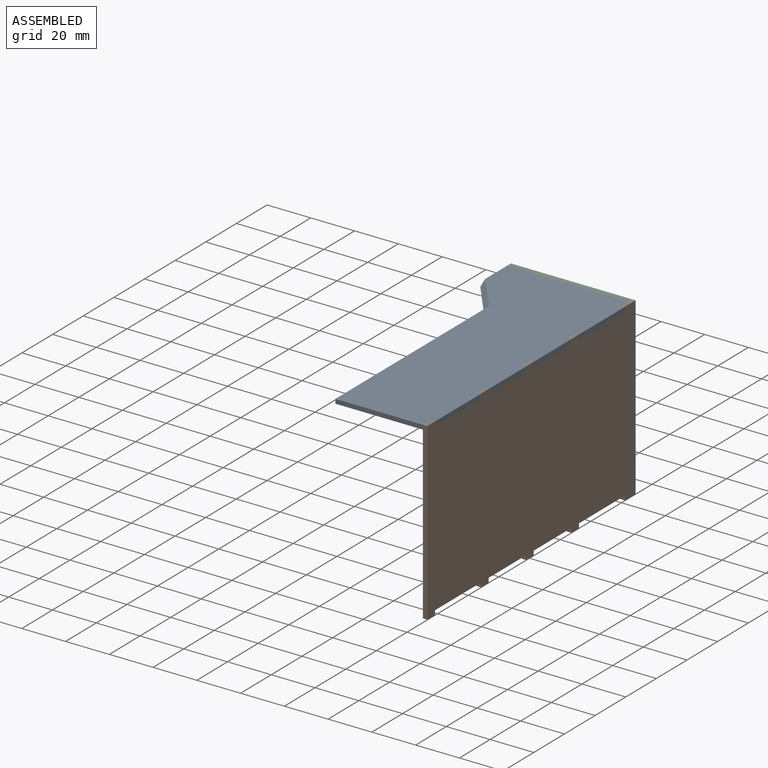
[diagram: assembled view]
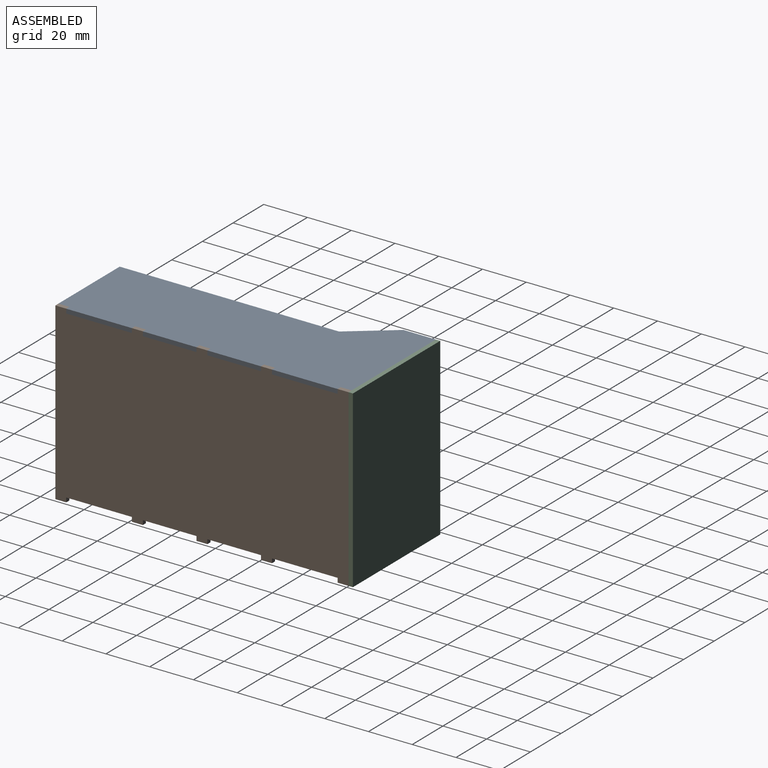
[diagram: assembled view, second angle]
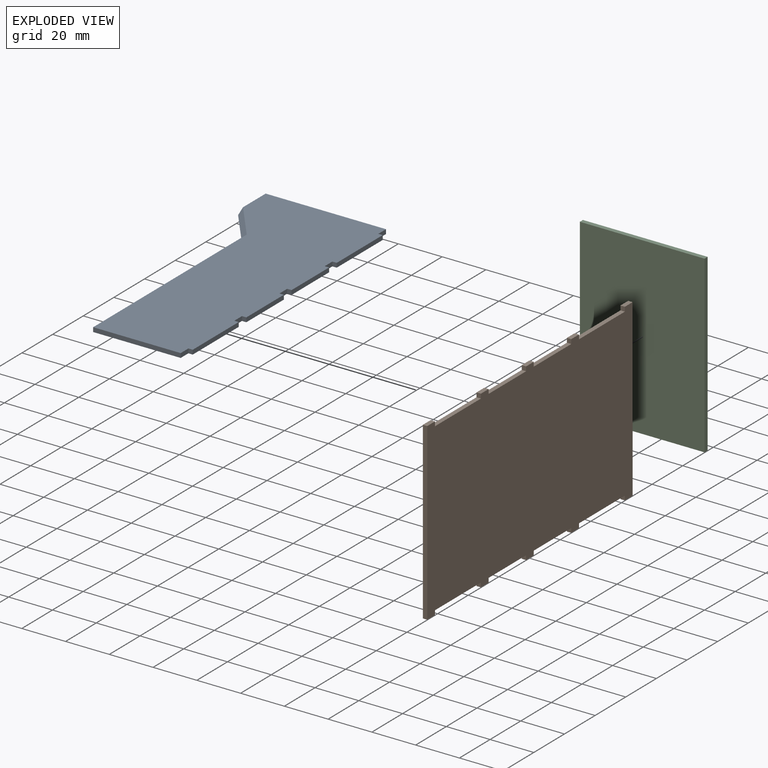
[diagram: exploded view]
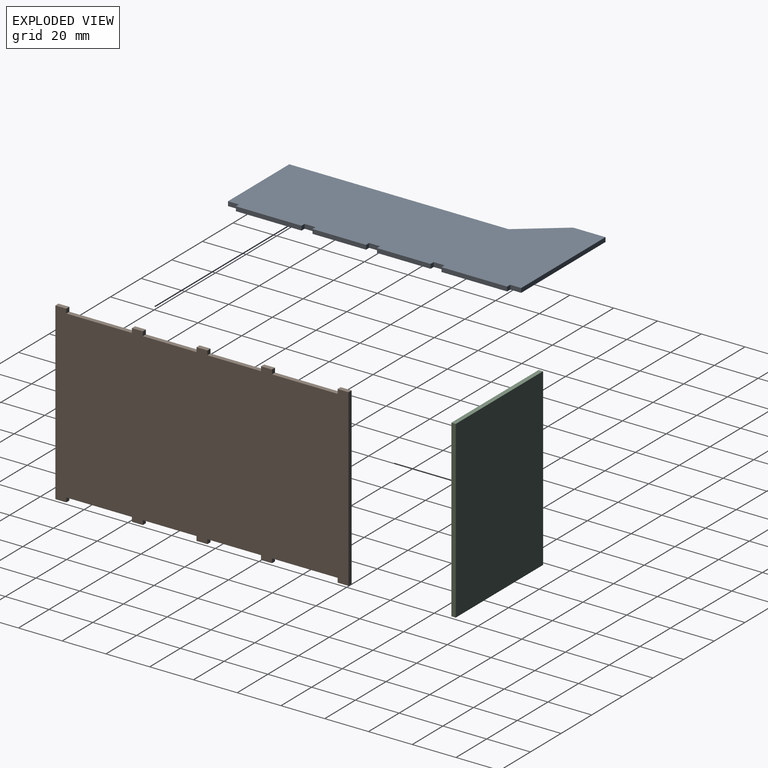
[diagram: exploded view, second angle]
ASSEMBLY  parts=3 mates=2
PART A: 28 faces, bbox 57x134x4 mm
  f0: plane 55x2mm, normal (0,1,0), area 110mm2, adj f5,f6,f9,f16
  f1: plane 30x2mm, normal (1,0,0), area 60mm2, adj f5,f6,f23,f26
  f2: plane 24.5x2mm, normal (1,0,0), area 49mm2, adj f5,f6,f22,f24
  f3: plane 24.5x2mm, normal (1,0,0), area 49mm2, adj f5,f6,f19,f20
  f4: plane 30x2mm, normal (1,0,0), area 60mm2, adj f5,f6,f15,f17
  f5: plane 134x57mm, normal (0,0,1), area 5942.1mm2, adj f0,f1,f2,f3,f4,f7,f8,f9
  f6: plane 134x57mm, normal (0,0,-1), area 5951.2mm2, adj f0,f1,f2,f3,f4,f7,f8,f9
  f7: plane 100.23x2mm, normal (-1,0,0), area 197.2mm2, adj f5,f6,f8,f14
  f8: plane 40x2mm, normal (0,-1,0), area 80mm2, adj f5,f6,f7,f27
  f9: plane 18x2mm, normal (-1,0,0), area 32.8mm2, adj f0,f5,f6,f14
  f10: cylinder r=2.5mm len=5mm, axis (0,0,1), area 31.4mm2, adj f6,f11
  f11: plane 5x5mm, normal (0,0,-1), area 19.6mm2, adj f10
  f12: cylinder r=2.5mm len=5mm, axis (0,0,1), area 31.4mm2, adj f6,f13
  f13: plane 5x5mm, normal (0,0,-1), area 19.6mm2, adj f12
  f14: plane 22.23x15mm, normal (-0.55,-0.44,0.71), area 68.5mm2, adj f5,f6,f7,f9
  f15: plane 2x2mm, normal (0,1,0), area 4mm2, adj f4,f5,f6,f16
  f16: plane 5x2mm, normal (1,0,0), area 10mm2, adj f0,f5,f6,f15
  f17: plane 2x2mm, normal (0,-1,0), area 4mm2, adj f4,f5,f6,f18
  f18: plane 5x2mm, normal (1,0,0), area 10mm2, adj f5,f6,f17,f19
  f19: plane 2x2mm, normal (0,1,0), area 4mm2, adj f3,f5,f6,f18
  f20: plane 2x2mm, normal (0,-1,0), area 4mm2, adj f3,f5,f6,f21
  f21: plane 5x2mm, normal (1,0,0), area 10mm2, adj f5,f6,f20,f22
  f22: plane 2x2mm, normal (0,1,0), area 4mm2, adj f2,f5,f6,f21
  f23: plane 2x2mm, normal (0,1,0), area 4mm2, adj f1,f5,f6,f25
  f24: plane 2x2mm, normal (0,-1,0), area 4mm2, adj f2,f5,f6,f25
  f25: plane 5x2mm, normal (1,0,0), area 10mm2, adj f5,f6,f23,f24
  f26: plane 2x2mm, normal (0,-1,0), area 4mm2, adj f1,f5,f6,f27
  f27: plane 5x2mm, normal (1,0,0), area 10mm2, adj f5,f6,f8,f26
PART B: 38 faces, bbox 80x134x2 mm
  f0: plane 2x2mm, normal (0,1,0), area 4mm2, adj f1,f35,f36,f37
  f1: plane 24.5x2mm, normal (1,0,0), area 49mm2, adj f0,f2,f36,f37
  f2: plane 2x2mm, normal (0,-1,0), area 4mm2, adj f1,f3,f36,f37
  f3: plane 5x2mm, normal (1,0,0), area 10mm2, adj f2,f4,f36,f37
  f4: plane 2x2mm, normal (0,1,0), area 4mm2, adj f3,f5,f36,f37
  f5: plane 24.5x2mm, normal (1,0,0), area 49mm2, adj f4,f6,f36,f37
  f6: plane 2x2mm, normal (0,-1,0), area 4mm2, adj f5,f7,f36,f37
  f7: plane 5x2mm, normal (1,0,0), area 10mm2, adj f6,f8,f36,f37
  f8: plane 2x2mm, normal (0,1,0), area 4mm2, adj f7,f9,f36,f37
  f9: plane 30x2mm, normal (1,0,0), area 60mm2, adj f8,f10,f36,f37
  f10: plane 2x2mm, normal (0,-1,0), area 4mm2, adj f9,f11,f36,f37
  f11: plane 5x2mm, normal (1,0,0), area 10mm2, adj f10,f12,f36,f37
  f12: plane 80x2mm, normal (0,1,0), area 160mm2, adj f11,f13,f36,f37
  f13: plane 5x2mm, normal (-1,0,0), area 10mm2, adj f12,f14,f36,f37
  f14: plane 2x2mm, normal (0,-1,0), area 4mm2, adj f13,f15,f36,f37
  f15: plane 30x2mm, normal (-1,0,0), area 60mm2, adj f14,f16,f36,f37
  f16: plane 2x2mm, normal (0,1,0), area 4mm2, adj f15,f17,f36,f37
  f17: plane 5x2mm, normal (-1,0,0), area 10mm2, adj f16,f18,f36,f37
  f18: plane 2x2mm, normal (0,-1,0), area 4mm2, adj f17,f19,f36,f37
  f19: plane 24.5x2mm, normal (-1,0,0), area 49mm2, adj f18,f20,f36,f37
  f20: plane 2x2mm, normal (0,1,0), area 4mm2, adj f19,f21,f36,f37
  f21: plane 5x2mm, normal (-1,0,0), area 10mm2, adj f20,f22,f36,f37
  f22: plane 2x2mm, normal (0,-1,0), area 4mm2, adj f21,f23,f36,f37
  f23: plane 24.5x2mm, normal (-1,0,0), area 49mm2, adj f22,f24,f36,f37
  f24: plane 2x2mm, normal (0,1,0), area 4mm2, adj f23,f25,f36,f37
  f25: plane 5x2mm, normal (-1,0,0), area 10mm2, adj f24,f26,f36,f37
  f26: plane 2x2mm, normal (0,-1,0), area 4mm2, adj f25,f27,f36,f37
  f27: plane 30x2mm, normal (-1,0,0), area 60mm2, adj f26,f28,f36,f37
  f28: plane 2x2mm, normal (0,1,0), area 4mm2, adj f27,f29,f36,f37
  f29: plane 5x2mm, normal (-1,0,0), area 10mm2, adj f28,f30,f36,f37
  f30: plane 80x2mm, normal (0,-1,0), area 160mm2, adj f29,f31,f36,f37
  f31: plane 5x2mm, normal (1,0,0), area 10mm2, adj f30,f32,f36,f37
  f32: plane 2x2mm, normal (0,1,0), area 4mm2, adj f31,f33,f36,f37
  f33: plane 30x2mm, normal (1,0,0), area 60mm2, adj f32,f34,f36,f37
  f34: plane 2x2mm, normal (0,-1,0), area 4mm2, adj f33,f35,f36,f37
  f35: plane 5x2mm, normal (1,0,0), area 10mm2, adj f0,f34,f36,f37
  f36: plane 134x80mm, normal (0,0,1), area 10284mm2, adj f0,f1,f2,f3,f4,f5,f6,f7
  f37: plane 134x80mm, normal (0,0,-1), area 10284mm2, adj f0,f1,f2,f3,f4,f5,f6,f7
PART C: 6 faces, bbox 80x57x2 mm
  f0: plane 80x2mm, normal (0,1,0), area 160mm2, adj f1,f3,f4,f5
  f1: plane 57x2mm, normal (-1,0,0), area 114mm2, adj f0,f2,f4,f5
  f2: plane 80x2mm, normal (0,-1,0), area 160mm2, adj f1,f3,f4,f5
  f3: plane 57x2mm, normal (1,0,0), area 114mm2, adj f0,f2,f4,f5
  f4: plane 80x57mm, normal (0,0,1), area 4560mm2, adj f0,f1,f2,f3
  f5: plane 80x57mm, normal (0,0,-1), area 4560mm2, adj f0,f1,f2,f3
PLACE A t=(-13.98,-62.02,0)mm
PLACE B rot(axis=(0,1,0),90deg) t=(21.02,-20.23,-35.18)mm
PLACE C rot(axis=(-0.58,-0.58,-0.58),120deg) t=(23.02,62.98,-78)mm
MATE fastened C.f5 <-> B.f12  axis (0,-1,0) through (23.02,62.98,2)mm
MATE fastened B.f37 <-> A.f16  axis (-1,0,0) through (21.02,60.48,2)mm
